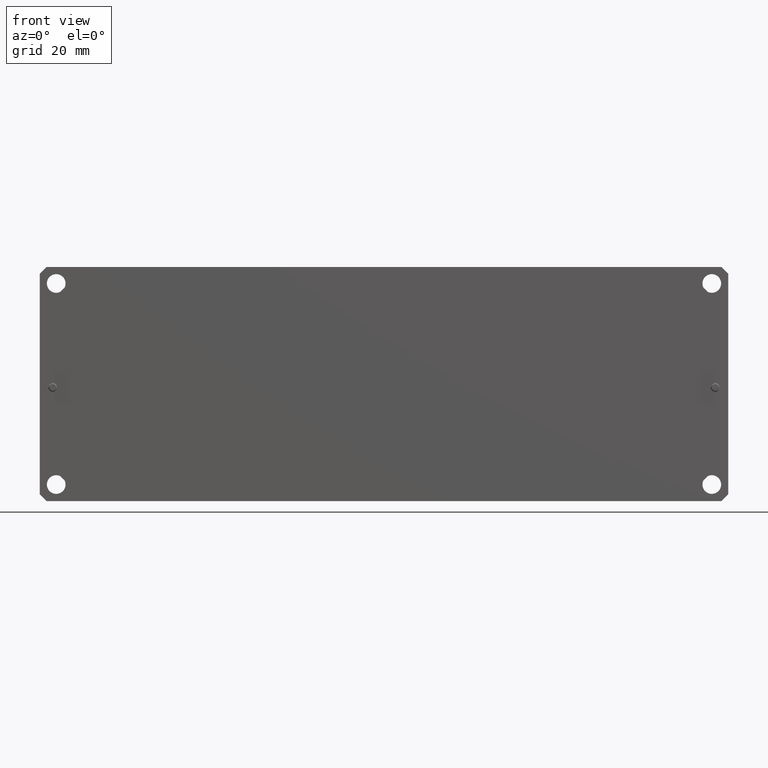
[diagram: clean part render]
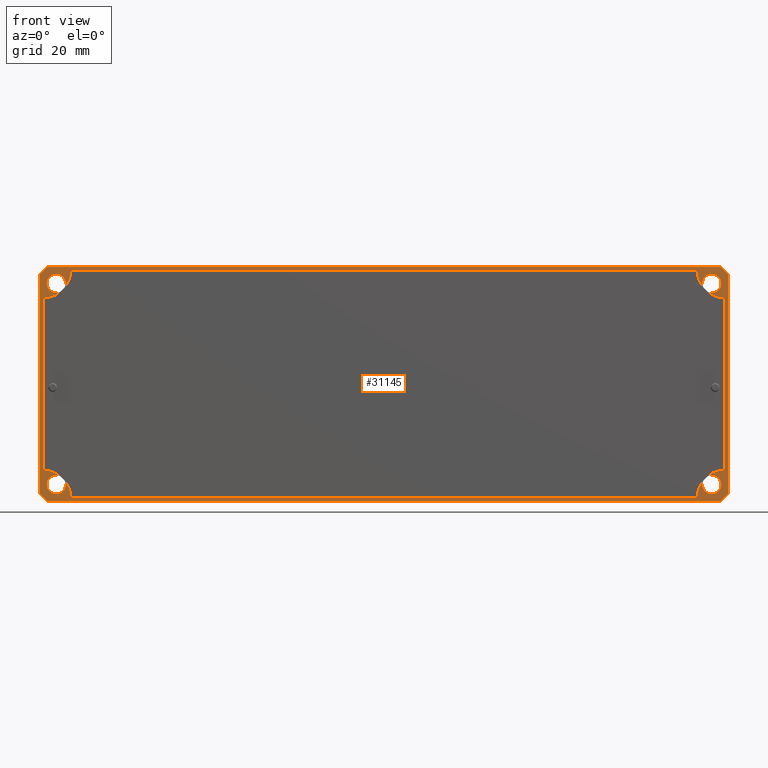
[diagram: same view with one face highlighted and labeled with its STEP entity id]
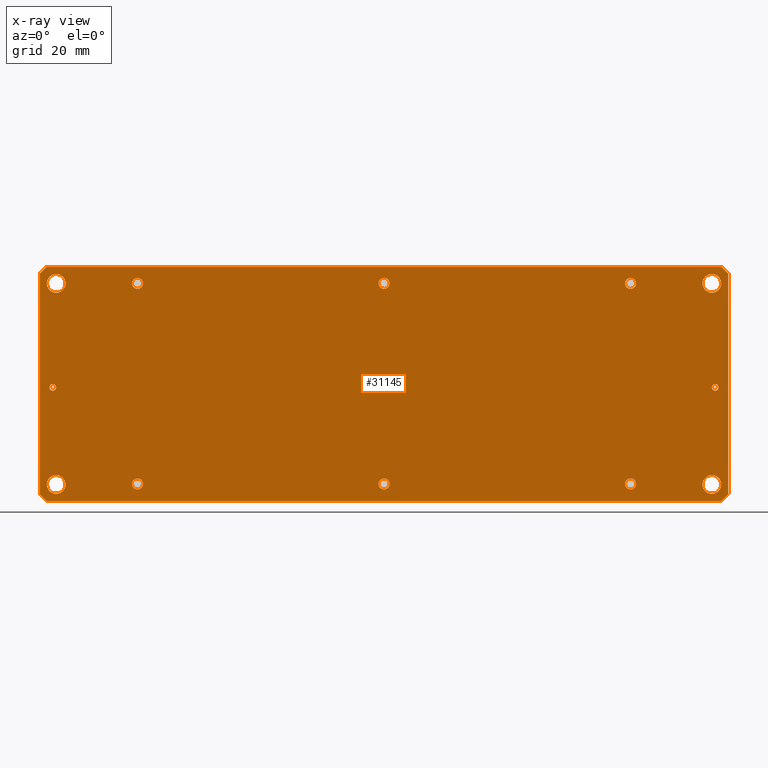
[diagram: x-ray of the same camera — body ghosted, the highlighted face saturated]
A machine part, front view. The second image highlights one B-rep face of the part: STEP entity #31145.
The next image is the same camera in x-ray: the body ghosted, the highlighted face saturated — about 0% of this face is hidden behind the body in this view.
In plain terms, the highlighted planar face has unit normal (0, 1, 0).
Its self-contained STEP definition (entity closure, byte-faithful):
#301 = ORIENTED_EDGE ( 'NONE', *, *, #20518, .F. ) ;
#390 = FACE_BOUND ( 'NONE', #29725, .T. ) ;
#654 = ORIENTED_EDGE ( 'NONE', *, *, #20193, .T. ) ;
#837 = VECTOR ( 'NONE', #26291, 39.37007874015748900 ) ;
#876 = EDGE_CURVE ( 'NONE', #28999, #32342, #25570, .T. ) ;
#1037 = EDGE_LOOP ( 'NONE', ( #2045, #21805 ) ) ;
#1131 = DIRECTION ( 'NONE',  ( 0.0000000000000000000, 0.0000000000000000000, -1.000000000000000000 ) ) ;
#1258 = VERTEX_POINT ( 'NONE', #32177 ) ;
#1695 = CIRCLE ( 'NONE', #24678, 0.04035433070866107500 ) ;
#1918 = DIRECTION ( 'NONE',  ( 0.0000000000000000000, 1.000000000000000000, 0.0000000000000000000 ) ) ;
#1935 = ORIENTED_EDGE ( 'NONE', *, *, #20719, .T. ) ;
#1982 = ORIENTED_EDGE ( 'NONE', *, *, #3129, .T. ) ;
#2045 = ORIENTED_EDGE ( 'NONE', *, *, #23252, .T. ) ;
#2047 = VERTEX_POINT ( 'NONE', #10048 ) ;
#2098 = CIRCLE ( 'NONE', #30725, 0.06800000000000006000 ) ;
#2152 = VERTEX_POINT ( 'NONE', #31867 ) ;
#2157 = DIRECTION ( 'NONE',  ( 0.0000000000000000000, 0.0000000000000000000, 1.000000000000000000 ) ) ;
#2198 = DIRECTION ( 'NONE',  ( 0.0000000000000000000, 0.0000000000000000000, 1.000000000000000000 ) ) ;
#2371 = ORIENTED_EDGE ( 'NONE', *, *, #30657, .T. ) ;
#2396 = CARTESIAN_POINT ( 'NONE',  ( 2.500000000000000000, 0.0000000000000000000, -0.8500000000000003100 ) ) ;
#2410 = EDGE_CURVE ( 'NONE', #29176, #10495, #14071, .T. ) ;
#2506 = VECTOR ( 'NONE', #1131, 39.37007874015748100 ) ;
#2510 = DIRECTION ( 'NONE',  ( 0.0000000000000000000, -0.0000000000000000000, 1.000000000000000000 ) ) ;
#2539 = AXIS2_PLACEMENT_3D ( 'NONE', #10097, #20580, #25507 ) ;
#2631 = EDGE_CURVE ( 'NONE', #32342, #28999, #30520, .T. ) ;
#2642 = DIRECTION ( 'NONE',  ( 0.0000000000000000000, 1.000000000000000000, 0.0000000000000000000 ) ) ;
#2735 = VERTEX_POINT ( 'NONE', #14644 ) ;
#2801 = CARTESIAN_POINT ( 'NONE',  ( 1.789999999999999800, 0.0000000000000000000, 0.7703543307086613300 ) ) ;
#2891 = DIRECTION ( 'NONE',  ( 1.000000000000000000, -0.0000000000000000000, -1.092739197465705300E-016 ) ) ;
#3129 = EDGE_CURVE ( 'NONE', #4295, #19965, #18780, .T. ) ;
#3151 = DIRECTION ( 'NONE',  ( 0.0000000000000000000, 1.000000000000000000, 0.0000000000000000000 ) ) ;
#3246 = VERTEX_POINT ( 'NONE', #29497 ) ;
#3258 = CARTESIAN_POINT ( 'NONE',  ( 0.0000000000000000000, 0.0000000000000000000, 0.7703543307086614400 ) ) ;
#3305 = CIRCLE ( 'NONE', #7815, 0.02499999999999981400 ) ;
#3448 = AXIS2_PLACEMENT_3D ( 'NONE', #33183, #13027, #2510 ) ;
#3465 = CIRCLE ( 'NONE', #25932, 0.04035433070866107500 ) ;
#3538 = LINE ( 'NONE', #13692, #26342 ) ;
#3581 = DIRECTION ( 'NONE',  ( 0.0000000000000000000, 0.0000000000000000000, 1.000000000000000000 ) ) ;
#3591 = EDGE_CURVE ( 'NONE', #10870, #2047, #32729, .T. ) ;
#4052 = CIRCLE ( 'NONE', #11414, 0.04035433070866107500 ) ;
#4289 = AXIS2_PLACEMENT_3D ( 'NONE', #31792, #16423, #8949 ) ;
#4295 = VERTEX_POINT ( 'NONE', #19771 ) ;
#4373 = EDGE_LOOP ( 'NONE', ( #654, #9657 ) ) ;
#4404 = DIRECTION ( 'NONE',  ( 0.0000000000000000000, 0.0000000000000000000, 1.000000000000000000 ) ) ;
#4431 = CARTESIAN_POINT ( 'NONE',  ( 2.405000000000000200, 0.0000000000000000000, -6.018602611041579900E-016 ) ) ;
#4809 = DIRECTION ( 'NONE',  ( 0.0000000000000000000, 1.000000000000000000, 0.0000000000000000000 ) ) ;
#4834 = EDGE_CURVE ( 'NONE', #2735, #17195, #14166, .T. ) ;
#4875 = DIRECTION ( 'NONE',  ( 0.0000000000000000000, 1.000000000000000000, 0.0000000000000000000 ) ) ;
#4877 = CARTESIAN_POINT ( 'NONE',  ( -2.380000000000000300, 0.0000000000000000000, -0.7300000000000004300 ) ) ;
#4899 = DIRECTION ( 'NONE',  ( 0.7071067811865513500, -0.0000000000000000000, 0.7071067811865435800 ) ) ;
#4938 = ORIENTED_EDGE ( 'NONE', *, *, #12589, .T. ) ;
#4946 = DIRECTION ( 'NONE',  ( 0.0000000000000000000, 1.000000000000000000, 0.0000000000000000000 ) ) ;
#5166 = CARTESIAN_POINT ( 'NONE',  ( -2.380000000000000300, 0.0000000000000000000, 0.6619999999999994800 ) ) ;
#5471 = CARTESIAN_POINT ( 'NONE',  ( -2.380000000000000300, 0.0000000000000000000, 0.7299999999999995400 ) ) ;
#5566 = CARTESIAN_POINT ( 'NONE',  ( 2.380000000000000800, 0.0000000000000000000, 0.6619999999999994800 ) ) ;
#5592 = FACE_BOUND ( 'NONE', #14570, .T. ) ;
#6037 = AXIS2_PLACEMENT_3D ( 'NONE', #4877, #22769, #30650 ) ;
#6042 = AXIS2_PLACEMENT_3D ( 'NONE', #11493, #31866, #6455 ) ;
#6081 = CIRCLE ( 'NONE', #21109, 0.06800000000000006000 ) ;
#6178 = EDGE_CURVE ( 'NONE', #20223, #22874, #2098, .T. ) ;
#6231 = EDGE_CURVE ( 'NONE', #22874, #20223, #32119, .T. ) ;
#6241 = VECTOR ( 'NONE', #2891, 39.37007874015748100 ) ;
#6455 = DIRECTION ( 'NONE',  ( 0.0000000000000000000, 0.0000000000000000000, 1.000000000000000000 ) ) ;
#6609 = AXIS2_PLACEMENT_3D ( 'NONE', #27705, #12152, #19733 ) ;
#6693 = DIRECTION ( 'NONE',  ( 0.0000000000000000000, 1.000000000000000000, 0.0000000000000000000 ) ) ;
#6839 = FACE_BOUND ( 'NONE', #23855, .T. ) ;
#6886 = CARTESIAN_POINT ( 'NONE',  ( -2.405000000000000200, 0.0000000000000000000, -6.018602611041579900E-016 ) ) ;
#7022 = CARTESIAN_POINT ( 'NONE',  ( 2.380000000000000800, 0.0000000000000000000, 0.7299999999999995400 ) ) ;
#7294 = CARTESIAN_POINT ( 'NONE',  ( 1.789999999999999800, 0.0000000000000000000, -0.7663543307086611000 ) ) ;
#7364 = CARTESIAN_POINT ( 'NONE',  ( -2.405000000000000200, 0.0000000000000000000, -0.02500000000000041800 ) ) ;
#7379 = DIRECTION ( 'NONE',  ( 0.0000000000000000000, 1.000000000000000000, 0.0000000000000000000 ) ) ;
#7390 = DIRECTION ( 'NONE',  ( 0.0000000000000000000, 0.0000000000000000000, 1.000000000000000000 ) ) ;
#7647 = EDGE_LOOP ( 'NONE', ( #13418, #30983 ) ) ;
#7677 = CARTESIAN_POINT ( 'NONE',  ( -2.500000000000000000, 0.0000000000000000000, 0.8000000000000003800 ) ) ;
#7749 = DIRECTION ( 'NONE',  ( 0.0000000000000000000, 0.0000000000000000000, 1.000000000000000000 ) ) ;
#7804 = CARTESIAN_POINT ( 'NONE',  ( 0.0000000000000000000, 0.0000000000000000000, -0.6856456692913387400 ) ) ;
#7815 = AXIS2_PLACEMENT_3D ( 'NONE', #7364, #4875, #2198 ) ;
#7963 = DIRECTION ( 'NONE',  ( 0.0000000000000000000, 1.000000000000000000, 0.0000000000000000000 ) ) ;
#8058 = CARTESIAN_POINT ( 'NONE',  ( -1.790000000000000300, 0.0000000000000000000, 0.6896456692913390800 ) ) ;
#8485 = CARTESIAN_POINT ( 'NONE',  ( 2.405000000000000200, 0.0000000000000000000, -0.05000000000000023200 ) ) ;
#8632 = EDGE_CURVE ( 'NONE', #26980, #31966, #27276, .T. ) ;
#8744 = EDGE_LOOP ( 'NONE', ( #10292, #1982 ) ) ;
#8949 = DIRECTION ( 'NONE',  ( 0.0000000000000000000, 0.0000000000000000000, 1.000000000000000000 ) ) ;
#9007 = VERTEX_POINT ( 'NONE', #20538 ) ;
#9031 = CARTESIAN_POINT ( 'NONE',  ( 0.0000000000000000000, 0.0000000000000000000, 0.7300000000000003200 ) ) ;
#9245 = AXIS2_PLACEMENT_3D ( 'NONE', #17081, #22181, #4404 ) ;
#9407 = VERTEX_POINT ( 'NONE', #7677 ) ;
#9525 = CARTESIAN_POINT ( 'NONE',  ( -2.405000000000000200, 0.0000000000000000000, -0.02500000000000041800 ) ) ;
#9567 = DIRECTION ( 'NONE',  ( 0.0000000000000000000, 1.000000000000000000, 0.0000000000000000000 ) ) ;
#9657 = ORIENTED_EDGE ( 'NONE', *, *, #18845, .T. ) ;
#9687 = ORIENTED_EDGE ( 'NONE', *, *, #24701, .T. ) ;
#9837 = ORIENTED_EDGE ( 'NONE', *, *, #18603, .T. ) ;
#9864 = CARTESIAN_POINT ( 'NONE',  ( -2.380000000000000300, 0.0000000000000000000, -0.7300000000000004300 ) ) ;
#10048 = CARTESIAN_POINT ( 'NONE',  ( -2.405000000000000200, 0.0000000000000000000, -0.05000000000000023200 ) ) ;
#10080 = AXIS2_PLACEMENT_3D ( 'NONE', #9031, #6693, #19420 ) ;
#10097 = CARTESIAN_POINT ( 'NONE',  ( 0.0000000000000000000, 0.0000000000000000000, -0.7259999999999999800 ) ) ;
#10121 = VECTOR ( 'NONE', #22873, 39.37007874015748100 ) ;
#10292 = ORIENTED_EDGE ( 'NONE', *, *, #12242, .T. ) ;
#10365 = CARTESIAN_POINT ( 'NONE',  ( -2.380000000000000300, 0.0000000000000000000, 0.7979999999999997100 ) ) ;
#10412 = ORIENTED_EDGE ( 'NONE', *, *, #2410, .T. ) ;
#10419 = FACE_BOUND ( 'NONE', #1037, .T. ) ;
#10426 = EDGE_LOOP ( 'NONE', ( #28549, #13808 ) ) ;
#10495 = VERTEX_POINT ( 'NONE', #7294 ) ;
#10540 = ORIENTED_EDGE ( 'NONE', *, *, #16337, .T. ) ;
#10700 = EDGE_CURVE ( 'NONE', #19821, #9407, #21399, .T. ) ;
#10712 = CARTESIAN_POINT ( 'NONE',  ( 1.789999999999999800, 0.0000000000000000000, -0.6856456692913389700 ) ) ;
#10870 = VERTEX_POINT ( 'NONE', #6886 ) ;
#11013 = EDGE_CURVE ( 'NONE', #25233, #20708, #32982, .T. ) ;
#11239 = ORIENTED_EDGE ( 'NONE', *, *, #13633, .T. ) ;
#11370 = CARTESIAN_POINT ( 'NONE',  ( 2.380000000000000800, 0.0000000000000000000, -0.7980000000000004900 ) ) ;
#11414 = AXIS2_PLACEMENT_3D ( 'NONE', #23849, #3151, #31586 ) ;
#11483 = EDGE_LOOP ( 'NONE', ( #11239, #27461 ) ) ;
#11485 = CARTESIAN_POINT ( 'NONE',  ( -1.790000000000000300, 0.0000000000000000000, -0.6856456692913389700 ) ) ;
#11493 = CARTESIAN_POINT ( 'NONE',  ( -2.380000000000000300, 0.0000000000000000000, 0.7299999999999995400 ) ) ;
#11767 = EDGE_CURVE ( 'NONE', #28220, #22430, #32842, .T. ) ;
#11769 = CARTESIAN_POINT ( 'NONE',  ( -1.790000000000000300, 0.0000000000000000000, -0.7259999999999999800 ) ) ;
#11806 = AXIS2_PLACEMENT_3D ( 'NONE', #32436, #7379, #27405 ) ;
#11834 = CARTESIAN_POINT ( 'NONE',  ( 2.380000000000000800, 0.0000000000000000000, -0.7300000000000004300 ) ) ;
#12152 = DIRECTION ( 'NONE',  ( 0.0000000000000000000, 1.000000000000000000, 0.0000000000000000000 ) ) ;
#12242 = EDGE_CURVE ( 'NONE', #19965, #4295, #3465, .T. ) ;
#12534 = CARTESIAN_POINT ( 'NONE',  ( -2.380000000000000300, 0.0000000000000000000, -0.6620000000000003700 ) ) ;
#12589 = EDGE_CURVE ( 'NONE', #16983, #17749, #25404, .T. ) ;
#12807 = FACE_BOUND ( 'NONE', #20557, .T. ) ;
#12981 = VERTEX_POINT ( 'NONE', #27054 ) ;
#13027 = DIRECTION ( 'NONE',  ( 0.0000000000000000000, 1.000000000000000000, 0.0000000000000000000 ) ) ;
#13071 = AXIS2_PLACEMENT_3D ( 'NONE', #25831, #23387, #25502 ) ;
#13195 = AXIS2_PLACEMENT_3D ( 'NONE', #7022, #9567, #2157 ) ;
#13219 = LINE ( 'NONE', #18471, #837 ) ;
#13418 = ORIENTED_EDGE ( 'NONE', *, *, #11767, .T. ) ;
#13529 = EDGE_LOOP ( 'NONE', ( #14470, #14812 ) ) ;
#13633 = EDGE_CURVE ( 'NONE', #17195, #2735, #6081, .T. ) ;
#13692 = CARTESIAN_POINT ( 'NONE',  ( -2.450000000000000200, 0.0000000000000000000, 0.8500000000000000900 ) ) ;
#13710 = CIRCLE ( 'NONE', #30905, 0.04035433070866107500 ) ;
#13808 = ORIENTED_EDGE ( 'NONE', *, *, #11013, .T. ) ;
#14071 = CIRCLE ( 'NONE', #4289, 0.04035433070866107500 ) ;
#14166 = CIRCLE ( 'NONE', #19254, 0.06800000000000006000 ) ;
#14345 = DIRECTION ( 'NONE',  ( 0.0000000000000000000, 0.0000000000000000000, 1.000000000000000000 ) ) ;
#14470 = ORIENTED_EDGE ( 'NONE', *, *, #2631, .T. ) ;
#14570 = EDGE_LOOP ( 'NONE', ( #19175, #27989 ) ) ;
#14644 = CARTESIAN_POINT ( 'NONE',  ( 2.380000000000000800, 0.0000000000000000000, -0.6620000000000003700 ) ) ;
#14699 = CARTESIAN_POINT ( 'NONE',  ( 0.0000000000000000000, 0.0000000000000000000, -0.7259999999999999800 ) ) ;
#14812 = ORIENTED_EDGE ( 'NONE', *, *, #876, .T. ) ;
#14887 = AXIS2_PLACEMENT_3D ( 'NONE', #25157, #4809, #7749 ) ;
#15271 = CARTESIAN_POINT ( 'NONE',  ( -1.790000000000000300, 0.0000000000000000000, 0.7703543307086612200 ) ) ;
#15339 = CIRCLE ( 'NONE', #2539, 0.04035433070866120700 ) ;
#15494 = ORIENTED_EDGE ( 'NONE', *, *, #22195, .F. ) ;
#15576 = ORIENTED_EDGE ( 'NONE', *, *, #16127, .F. ) ;
#15585 = FACE_BOUND ( 'NONE', #16479, .T. ) ;
#15843 = ORIENTED_EDGE ( 'NONE', *, *, #26857, .T. ) ;
#16070 = DIRECTION ( 'NONE',  ( -0.0000000000000000000, -0.0000000000000000000, 1.000000000000000000 ) ) ;
#16127 = EDGE_CURVE ( 'NONE', #16983, #9007, #20081, .T. ) ;
#16337 = EDGE_CURVE ( 'NONE', #16465, #18330, #21665, .T. ) ;
#16423 = DIRECTION ( 'NONE',  ( 0.0000000000000000000, 1.000000000000000000, 0.0000000000000000000 ) ) ;
#16465 = VERTEX_POINT ( 'NONE', #12534 ) ;
#16479 = EDGE_LOOP ( 'NONE', ( #10412, #9687 ) ) ;
#16983 = VERTEX_POINT ( 'NONE', #20512 ) ;
#17081 = CARTESIAN_POINT ( 'NONE',  ( -1.790000000000000300, 0.0000000000000000000, -0.7259999999999999800 ) ) ;
#17195 = VERTEX_POINT ( 'NONE', #11370 ) ;
#17227 = FACE_BOUND ( 'NONE', #11483, .T. ) ;
#17451 = VECTOR ( 'NONE', #4899, 39.37007874015748900 ) ;
#17590 = DIRECTION ( 'NONE',  ( 0.0000000000000000000, 1.000000000000000000, 0.0000000000000000000 ) ) ;
#17593 = FACE_BOUND ( 'NONE', #8744, .T. ) ;
#17610 = AXIS2_PLACEMENT_3D ( 'NONE', #9525, #25241, #7390 ) ;
#17749 = VERTEX_POINT ( 'NONE', #31288 ) ;
#17818 = CARTESIAN_POINT ( 'NONE',  ( 2.380000000000000800, 0.0000000000000000000, -0.7300000000000004300 ) ) ;
#17861 = DIRECTION ( 'NONE',  ( 0.0000000000000000000, 0.0000000000000000000, 1.000000000000000000 ) ) ;
#17879 = DIRECTION ( 'NONE',  ( 0.0000000000000000000, 0.0000000000000000000, 1.000000000000000000 ) ) ;
#18090 = CIRCLE ( 'NONE', #25264, 0.04035433070866107500 ) ;
#18137 = CARTESIAN_POINT ( 'NONE',  ( 4.941980193409557300E-018, 0.0000000000000000000, -0.7663543307086612100 ) ) ;
#18232 = CARTESIAN_POINT ( 'NONE',  ( 2.500000000000000000, 0.0000000000000000000, 0.8499999999999995300 ) ) ;
#18330 = VERTEX_POINT ( 'NONE', #29141 ) ;
#18471 = CARTESIAN_POINT ( 'NONE',  ( -2.500000000000000000, 0.0000000000000000000, -0.8000000000000000400 ) ) ;
#18603 = EDGE_CURVE ( 'NONE', #1258, #9407, #3538, .T. ) ;
#18780 = CIRCLE ( 'NONE', #9245, 0.04035433070866107500 ) ;
#18845 = EDGE_CURVE ( 'NONE', #30204, #23245, #25498, .T. ) ;
#18943 = VERTEX_POINT ( 'NONE', #2801 ) ;
#19004 = CARTESIAN_POINT ( 'NONE',  ( 4.941980193409557300E-018, 0.0000000000000000000, 0.6896456692913390800 ) ) ;
#19022 = DIRECTION ( 'NONE',  ( 0.0000000000000000000, 1.000000000000000000, 0.0000000000000000000 ) ) ;
#19064 = DIRECTION ( 'NONE',  ( -0.7071067811865474600, 0.0000000000000000000, -0.7071067811865474600 ) ) ;
#19175 = ORIENTED_EDGE ( 'NONE', *, *, #6178, .T. ) ;
#19254 = AXIS2_PLACEMENT_3D ( 'NONE', #11834, #22763, #25542 ) ;
#19420 = DIRECTION ( 'NONE',  ( 0.0000000000000000000, 0.0000000000000000000, 1.000000000000000000 ) ) ;
#19733 = DIRECTION ( 'NONE',  ( 0.0000000000000000000, 0.0000000000000000000, 1.000000000000000000 ) ) ;
#19771 = CARTESIAN_POINT ( 'NONE',  ( -1.790000000000000300, 0.0000000000000000000, -0.7663543307086611000 ) ) ;
#19821 = VERTEX_POINT ( 'NONE', #25771 ) ;
#19965 = VERTEX_POINT ( 'NONE', #11485 ) ;
#20081 = LINE ( 'NONE', #2396, #10121 ) ;
#20193 = EDGE_CURVE ( 'NONE', #23245, #30204, #15339, .T. ) ;
#20223 = VERTEX_POINT ( 'NONE', #5166 ) ;
#20508 = CARTESIAN_POINT ( 'NONE',  ( 1.789999999999999800, 0.0000000000000000000, 0.7300000000000003200 ) ) ;
#20512 = CARTESIAN_POINT ( 'NONE',  ( 2.449999999999999700, 0.0000000000000000000, -0.8500000000000003100 ) ) ;
#20518 = EDGE_CURVE ( 'NONE', #3246, #17749, #32969, .T. ) ;
#20538 = CARTESIAN_POINT ( 'NONE',  ( -2.450000000000000200, 0.0000000000000000000, -0.8499999999999998700 ) ) ;
#20557 = EDGE_LOOP ( 'NONE', ( #31668, #28400 ) ) ;
#20580 = DIRECTION ( 'NONE',  ( 0.0000000000000000000, 1.000000000000000000, 0.0000000000000000000 ) ) ;
#20708 = VERTEX_POINT ( 'NONE', #15271 ) ;
#20719 = EDGE_CURVE ( 'NONE', #18943, #12981, #13710, .T. ) ;
#20846 = EDGE_CURVE ( 'NONE', #20708, #25233, #18090, .T. ) ;
#20881 = CARTESIAN_POINT ( 'NONE',  ( -2.500000000000000000, 0.0000000000000000000, 0.8500000000000000900 ) ) ;
#20970 = VECTOR ( 'NONE', #22156, 39.37007874015748900 ) ;
#21109 = AXIS2_PLACEMENT_3D ( 'NONE', #17818, #4946, #30502 ) ;
#21151 = EDGE_CURVE ( 'NONE', #18330, #16465, #28885, .T. ) ;
#21399 = LINE ( 'NONE', #20881, #23821 ) ;
#21665 = CIRCLE ( 'NONE', #28342, 0.06800000000000006000 ) ;
#21694 = CARTESIAN_POINT ( 'NONE',  ( 2.500000000000000000, 0.0000000000000000000, 0.8499999999999995300 ) ) ;
#21805 = ORIENTED_EDGE ( 'NONE', *, *, #3591, .T. ) ;
#22156 = DIRECTION ( 'NONE',  ( -0.7071067811865455700, -0.0000000000000000000, 0.7071067811865494600 ) ) ;
#22181 = DIRECTION ( 'NONE',  ( 0.0000000000000000000, 1.000000000000000000, 0.0000000000000000000 ) ) ;
#22195 = EDGE_CURVE ( 'NONE', #1258, #2152, #25025, .T. ) ;
#22430 = VERTEX_POINT ( 'NONE', #19004 ) ;
#22577 = LINE ( 'NONE', #27236, #20970 ) ;
#22763 = DIRECTION ( 'NONE',  ( 0.0000000000000000000, 1.000000000000000000, 0.0000000000000000000 ) ) ;
#22769 = DIRECTION ( 'NONE',  ( 0.0000000000000000000, 1.000000000000000000, 0.0000000000000000000 ) ) ;
#22873 = DIRECTION ( 'NONE',  ( -1.000000000000000000, 0.0000000000000000000, 1.092739197465705300E-016 ) ) ;
#22874 = VERTEX_POINT ( 'NONE', #10365 ) ;
#23245 = VERTEX_POINT ( 'NONE', #7804 ) ;
#23252 = EDGE_CURVE ( 'NONE', #2047, #10870, #3305, .T. ) ;
#23384 = CIRCLE ( 'NONE', #23629, 0.04035433070866120700 ) ;
#23387 = DIRECTION ( 'NONE',  ( 0.0000000000000000000, 1.000000000000000000, 0.0000000000000000000 ) ) ;
#23629 = AXIS2_PLACEMENT_3D ( 'NONE', #32477, #24759, #14345 ) ;
#23821 = VECTOR ( 'NONE', #16070, 39.37007874015748100 ) ;
#23849 = CARTESIAN_POINT ( 'NONE',  ( 1.789999999999999800, 0.0000000000000000000, -0.7259999999999999800 ) ) ;
#23855 = EDGE_LOOP ( 'NONE', ( #26456, #10540 ) ) ;
#24011 = FACE_BOUND ( 'NONE', #13529, .T. ) ;
#24678 = AXIS2_PLACEMENT_3D ( 'NONE', #33207, #2642, #17879 ) ;
#24701 = EDGE_CURVE ( 'NONE', #10495, #29176, #4052, .T. ) ;
#24750 = EDGE_CURVE ( 'NONE', #19821, #9007, #13219, .T. ) ;
#24759 = DIRECTION ( 'NONE',  ( 0.0000000000000000000, 1.000000000000000000, 0.0000000000000000000 ) ) ;
#24823 = FACE_BOUND ( 'NONE', #7647, .T. ) ;
#24877 = CIRCLE ( 'NONE', #13195, 0.06800000000000006000 ) ;
#25025 = LINE ( 'NONE', #18232, #6241 ) ;
#25101 = ORIENTED_EDGE ( 'NONE', *, *, #10700, .F. ) ;
#25157 = CARTESIAN_POINT ( 'NONE',  ( 2.380000000000000800, 0.0000000000000000000, 0.7299999999999995400 ) ) ;
#25233 = VERTEX_POINT ( 'NONE', #8058 ) ;
#25241 = DIRECTION ( 'NONE',  ( 0.0000000000000000000, 1.000000000000000000, 0.0000000000000000000 ) ) ;
#25264 = AXIS2_PLACEMENT_3D ( 'NONE', #31357, #31254, #31150 ) ;
#25404 = LINE ( 'NONE', #30567, #17451 ) ;
#25498 = CIRCLE ( 'NONE', #29092, 0.04035433070866120700 ) ;
#25502 = DIRECTION ( 'NONE',  ( 0.0000000000000000000, 0.0000000000000000000, 1.000000000000000000 ) ) ;
#25507 = DIRECTION ( 'NONE',  ( 0.0000000000000000000, 0.0000000000000000000, 1.000000000000000000 ) ) ;
#25542 = DIRECTION ( 'NONE',  ( 0.0000000000000000000, 0.0000000000000000000, 1.000000000000000000 ) ) ;
#25570 = CIRCLE ( 'NONE', #6609, 0.02499999999999981400 ) ;
#25771 = CARTESIAN_POINT ( 'NONE',  ( -2.500000000000000000, 0.0000000000000000000, -0.8000000000000000400 ) ) ;
#25831 = CARTESIAN_POINT ( 'NONE',  ( -1.790000000000000300, 0.0000000000000000000, 0.7300000000000000900 ) ) ;
#25932 = AXIS2_PLACEMENT_3D ( 'NONE', #11769, #19022, #3581 ) ;
#25976 = FACE_BOUND ( 'NONE', #4373, .T. ) ;
#26002 = ORIENTED_EDGE ( 'NONE', *, *, #24750, .T. ) ;
#26291 = DIRECTION ( 'NONE',  ( 0.7071067811865474600, -0.0000000000000000000, -0.7071067811865474600 ) ) ;
#26342 = VECTOR ( 'NONE', #19064, 39.37007874015748900 ) ;
#26456 = ORIENTED_EDGE ( 'NONE', *, *, #21151, .T. ) ;
#26722 = EDGE_CURVE ( 'NONE', #22430, #28220, #23384, .T. ) ;
#26742 = EDGE_LOOP ( 'NONE', ( #25101, #26002, #15576, #4938, #301, #15843, #15494, #9837 ) ) ;
#26857 = EDGE_CURVE ( 'NONE', #3246, #2152, #22577, .T. ) ;
#26980 = VERTEX_POINT ( 'NONE', #5566 ) ;
#27054 = CARTESIAN_POINT ( 'NONE',  ( 1.789999999999999800, 0.0000000000000000000, 0.6896456692913391900 ) ) ;
#27236 = CARTESIAN_POINT ( 'NONE',  ( 2.500000000000000000, 0.0000000000000000000, 0.8000000000000003800 ) ) ;
#27276 = CIRCLE ( 'NONE', #14887, 0.06800000000000006000 ) ;
#27405 = DIRECTION ( 'NONE',  ( 0.0000000000000000000, 0.0000000000000000000, 1.000000000000000000 ) ) ;
#27461 = ORIENTED_EDGE ( 'NONE', *, *, #4834, .T. ) ;
#27705 = CARTESIAN_POINT ( 'NONE',  ( 2.405000000000000200, 0.0000000000000000000, -0.02500000000000041800 ) ) ;
#27756 = DIRECTION ( 'NONE',  ( 0.0000000000000000000, 0.0000000000000000000, 1.000000000000000000 ) ) ;
#27989 = ORIENTED_EDGE ( 'NONE', *, *, #6231, .T. ) ;
#28004 = EDGE_CURVE ( 'NONE', #31966, #26980, #24877, .T. ) ;
#28220 = VERTEX_POINT ( 'NONE', #3258 ) ;
#28342 = AXIS2_PLACEMENT_3D ( 'NONE', #9864, #1918, #27756 ) ;
#28400 = ORIENTED_EDGE ( 'NONE', *, *, #28004, .T. ) ;
#28435 = FACE_BOUND ( 'NONE', #10426, .T. ) ;
#28549 = ORIENTED_EDGE ( 'NONE', *, *, #20846, .T. ) ;
#28885 = CIRCLE ( 'NONE', #6037, 0.06800000000000006000 ) ;
#28999 = VERTEX_POINT ( 'NONE', #4431 ) ;
#29092 = AXIS2_PLACEMENT_3D ( 'NONE', #14699, #17590, #32596 ) ;
#29141 = CARTESIAN_POINT ( 'NONE',  ( -2.380000000000000300, 0.0000000000000000000, -0.7980000000000004900 ) ) ;
#29176 = VERTEX_POINT ( 'NONE', #10712 ) ;
#29497 = CARTESIAN_POINT ( 'NONE',  ( 2.500000000000000000, 0.0000000000000000000, 0.8000000000000003800 ) ) ;
#29725 = EDGE_LOOP ( 'NONE', ( #1935, #2371 ) ) ;
#30204 = VERTEX_POINT ( 'NONE', #18137 ) ;
#30502 = DIRECTION ( 'NONE',  ( 0.0000000000000000000, 0.0000000000000000000, 1.000000000000000000 ) ) ;
#30520 = CIRCLE ( 'NONE', #11806, 0.02499999999999981400 ) ;
#30567 = CARTESIAN_POINT ( 'NONE',  ( 2.449999999999999700, 0.0000000000000000000, -0.8500000000000003100 ) ) ;
#30650 = DIRECTION ( 'NONE',  ( 0.0000000000000000000, 0.0000000000000000000, 1.000000000000000000 ) ) ;
#30657 = EDGE_CURVE ( 'NONE', #12981, #18943, #1695, .T. ) ;
#30725 = AXIS2_PLACEMENT_3D ( 'NONE', #5471, #7963, #30907 ) ;
#30845 = FACE_OUTER_BOUND ( 'NONE', #26742, .T. ) ;
#30905 = AXIS2_PLACEMENT_3D ( 'NONE', #20508, #33190, #17861 ) ;
#30907 = DIRECTION ( 'NONE',  ( 0.0000000000000000000, 0.0000000000000000000, 1.000000000000000000 ) ) ;
#30983 = ORIENTED_EDGE ( 'NONE', *, *, #26722, .T. ) ;
#31145 = ADVANCED_FACE ( 'NONE', ( #17593, #25976, #15585, #390, #24823, #28435, #30845, #6839, #5592, #12807, #10419, #24011, #17227 ), #33085, .F. ) ;
#31150 = DIRECTION ( 'NONE',  ( 0.0000000000000000000, 0.0000000000000000000, 1.000000000000000000 ) ) ;
#31254 = DIRECTION ( 'NONE',  ( 0.0000000000000000000, 1.000000000000000000, 0.0000000000000000000 ) ) ;
#31288 = CARTESIAN_POINT ( 'NONE',  ( 2.500000000000000000, 0.0000000000000000000, -0.8000000000000006000 ) ) ;
#31357 = CARTESIAN_POINT ( 'NONE',  ( -1.790000000000000300, 0.0000000000000000000, 0.7300000000000000900 ) ) ;
#31427 = CARTESIAN_POINT ( 'NONE',  ( 2.380000000000000800, 0.0000000000000000000, 0.7979999999999997100 ) ) ;
#31586 = DIRECTION ( 'NONE',  ( 0.0000000000000000000, 0.0000000000000000000, 1.000000000000000000 ) ) ;
#31668 = ORIENTED_EDGE ( 'NONE', *, *, #8632, .T. ) ;
#31792 = CARTESIAN_POINT ( 'NONE',  ( 1.789999999999999800, 0.0000000000000000000, -0.7259999999999999800 ) ) ;
#31866 = DIRECTION ( 'NONE',  ( 0.0000000000000000000, 1.000000000000000000, 0.0000000000000000000 ) ) ;
#31867 = CARTESIAN_POINT ( 'NONE',  ( 2.450000000000001100, 0.0000000000000000000, 0.8499999999999995300 ) ) ;
#31966 = VERTEX_POINT ( 'NONE', #31427 ) ;
#32119 = CIRCLE ( 'NONE', #6042, 0.06800000000000006000 ) ;
#32177 = CARTESIAN_POINT ( 'NONE',  ( -2.450000000000000200, 0.0000000000000000000, 0.8500000000000000900 ) ) ;
#32342 = VERTEX_POINT ( 'NONE', #8485 ) ;
#32436 = CARTESIAN_POINT ( 'NONE',  ( 2.405000000000000200, 0.0000000000000000000, -0.02500000000000041800 ) ) ;
#32477 = CARTESIAN_POINT ( 'NONE',  ( 0.0000000000000000000, 0.0000000000000000000, 0.7300000000000003200 ) ) ;
#32596 = DIRECTION ( 'NONE',  ( 0.0000000000000000000, 0.0000000000000000000, 1.000000000000000000 ) ) ;
#32729 = CIRCLE ( 'NONE', #17610, 0.02499999999999981400 ) ;
#32842 = CIRCLE ( 'NONE', #10080, 0.04035433070866120700 ) ;
#32969 = LINE ( 'NONE', #21694, #2506 ) ;
#32982 = CIRCLE ( 'NONE', #13071, 0.04035433070866107500 ) ;
#33085 = PLANE ( 'NONE',  #3448 ) ;
#33183 = CARTESIAN_POINT ( 'NONE',  ( 0.0000000000000000000, 0.0000000000000000000, 0.0000000000000000000 ) ) ;
#33190 = DIRECTION ( 'NONE',  ( 0.0000000000000000000, 1.000000000000000000, 0.0000000000000000000 ) ) ;
#33207 = CARTESIAN_POINT ( 'NONE',  ( 1.789999999999999800, 0.0000000000000000000, 0.7300000000000003200 ) ) ;